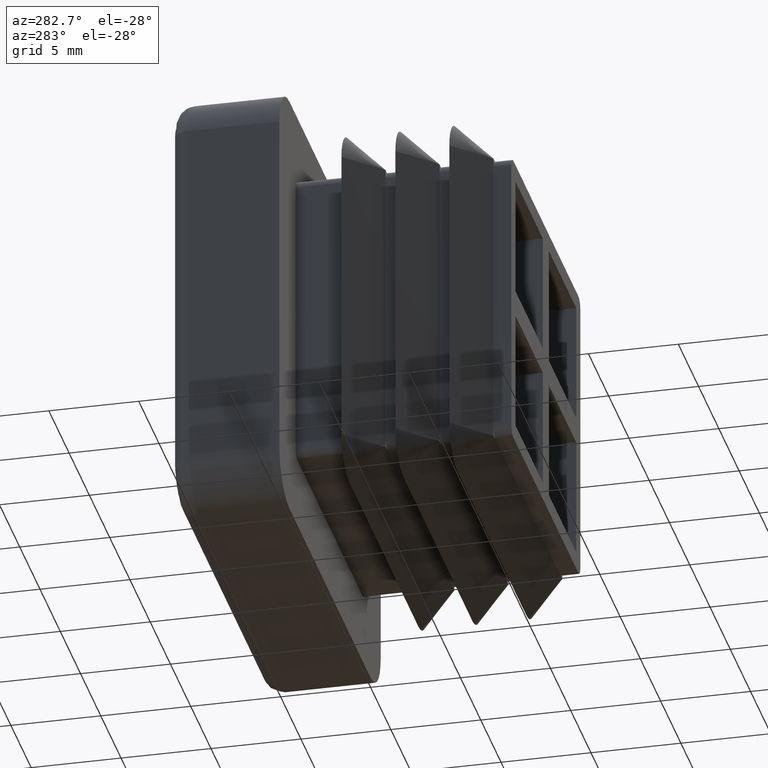
[diagram: clean part render]
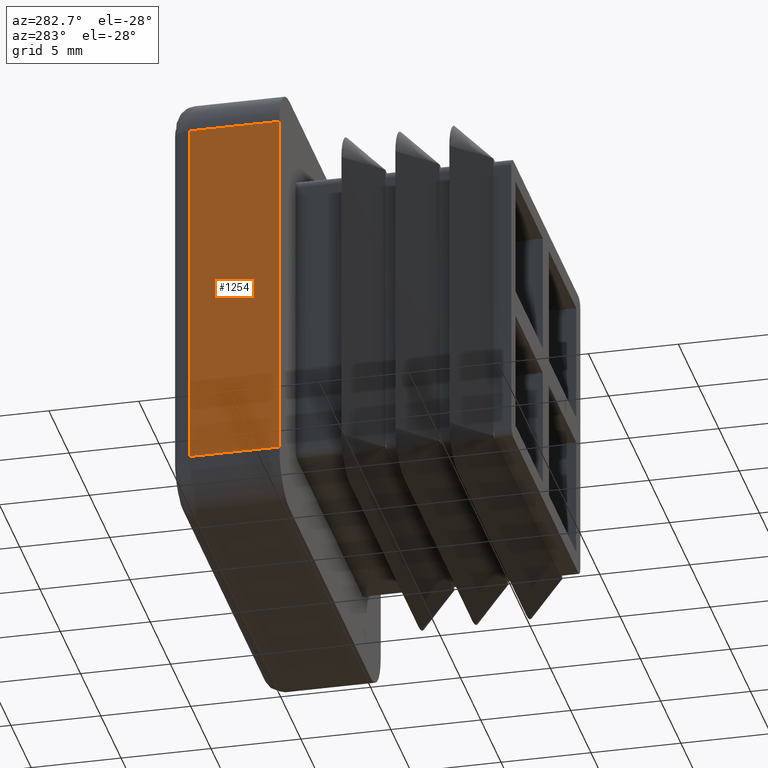
[diagram: same view with one face highlighted and labeled with its STEP entity id]
A machine part, auxiliary view. The second image highlights one B-rep face of the part: STEP entity #1254.
In plain terms, the highlighted planar face has unit normal (1, 0, 0).
Its self-contained STEP definition (entity closure, byte-faithful):
#1014=CARTESIAN_POINT('',(-12.499999999999996,5.0,9.999999999999982));
#1015=VERTEX_POINT('',#1014);
#1023=CARTESIAN_POINT('',(-12.499999999999996,0.0,9.999999999999982));
#1024=VERTEX_POINT('',#1023);
#1025=CARTESIAN_POINT('',(-12.499999999999996,5.0,9.999999999999982));
#1026=DIRECTION('',(0.0,-1.0,0.0));
#1027=VECTOR('',#1026,5.0);
#1028=LINE('',#1025,#1027);
#1029=EDGE_CURVE('',#1015,#1024,#1028,.T.);
#1205=CARTESIAN_POINT('',(-12.499999999999996,5.0,-9.999999999999989));
#1206=VERTEX_POINT('',#1205);
#1207=CARTESIAN_POINT('',(-12.499999999999996,0.0,-9.999999999999989));
#1208=VERTEX_POINT('',#1207);
#1209=CARTESIAN_POINT('',(-12.499999999999996,5.0,-9.999999999999989));
#1210=DIRECTION('',(0.0,-1.0,0.0));
#1211=VECTOR('',#1210,5.0);
#1212=LINE('',#1209,#1211);
#1213=EDGE_CURVE('',#1206,#1208,#1212,.T.);
#1233=CARTESIAN_POINT('',(-12.499999999999996,-0.250000000000000,10.999999999999982));
#1234=DIRECTION('',(1.0,0.0,0.0));
#1235=DIRECTION('',(0.0,0.0,-1.0));
#1236=AXIS2_PLACEMENT_3D('',#1233,#1234,#1235);
#1237=PLANE('',#1236);
#1238=ORIENTED_EDGE('',*,*,#1029,.F.);
#1239=CARTESIAN_POINT('',(-12.499999999999996,5.0,9.999999999999979));
#1240=DIRECTION('',(0.0,0.0,-1.0));
#1241=VECTOR('',#1240,19.999999999999964);
#1242=LINE('',#1239,#1241);
#1243=EDGE_CURVE('',#1015,#1206,#1242,.T.);
#1244=ORIENTED_EDGE('',*,*,#1243,.T.);
#1245=ORIENTED_EDGE('',*,*,#1213,.T.);
#1246=CARTESIAN_POINT('',(-12.499999999999996,0.0,-9.999999999999989));
#1247=DIRECTION('',(0.0,0.0,1.0));
#1248=VECTOR('',#1247,19.999999999999968);
#1249=LINE('',#1246,#1248);
#1250=EDGE_CURVE('',#1208,#1024,#1249,.T.);
#1251=ORIENTED_EDGE('',*,*,#1250,.T.);
#1252=EDGE_LOOP('',(#1238,#1244,#1245,#1251));
#1253=FACE_OUTER_BOUND('',#1252,.T.);
#1254=ADVANCED_FACE('',(#1253),#1237,.F.);